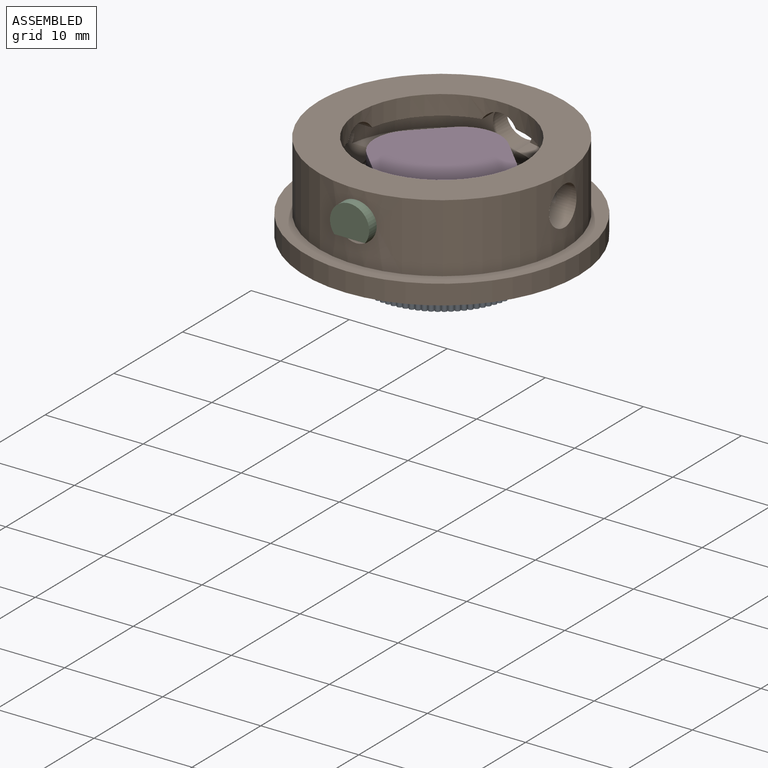
[diagram: assembled view]
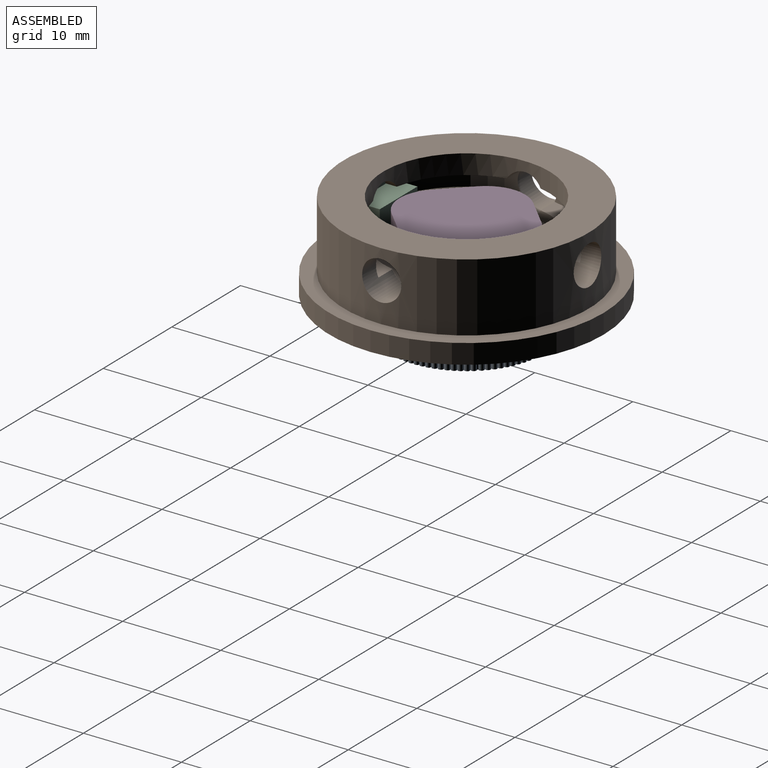
[diagram: assembled view, second angle]
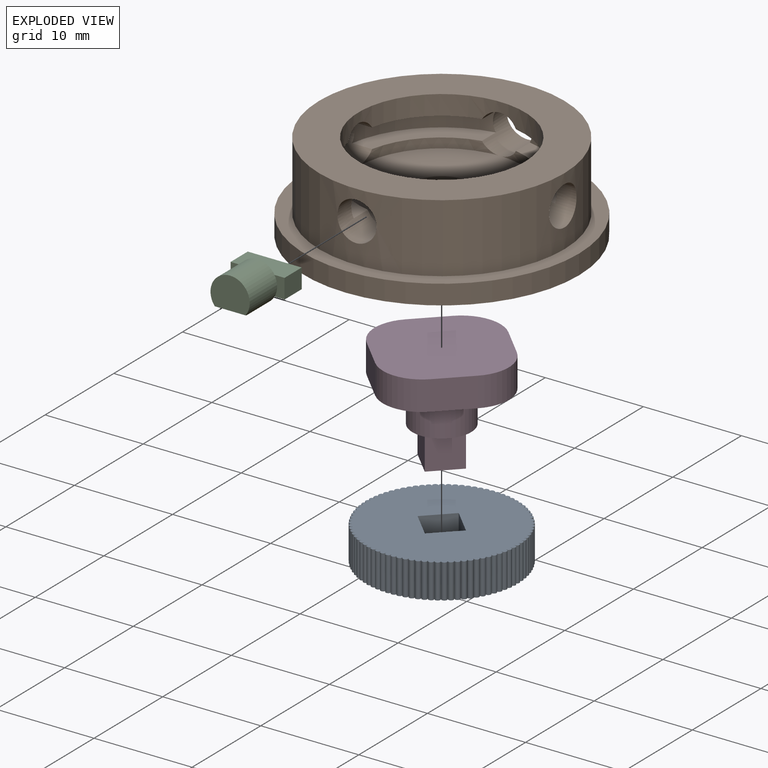
[diagram: exploded view]
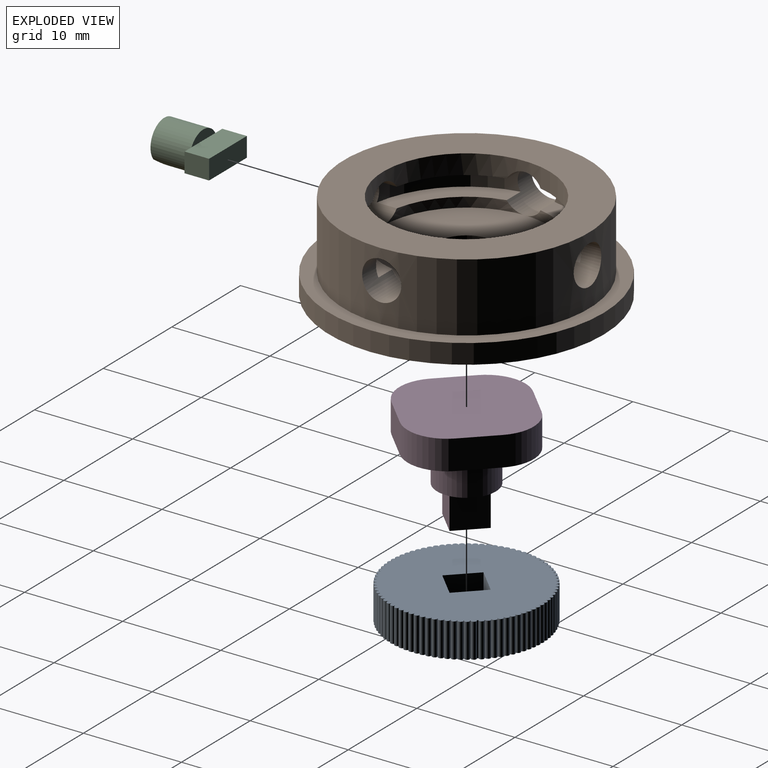
[diagram: exploded view, second angle]
ASSEMBLY  parts=4 mates=3
PART A: 176 faces, bbox 15.6x15.6x3.5 mm
  f0: cylinder r=0.27mm len=3.5mm, axis (0,0,1), area 3.1mm2, adj f1,f173,f174,f175
  f1: cylinder r=7.5mm len=3.5mm, axis (0,0,1), area 0.1mm2, adj f0,f2,f174,f175
  f2: cylinder r=0.27mm len=3.5mm, axis (0,0,1), area 3.1mm2, adj f1,f3,f174,f175
  f3: cylinder r=7.5mm len=3.5mm, axis (0,0,1), area 0.1mm2, adj f2,f4,f174,f175
  f4: cylinder r=0.27mm len=3.5mm, axis (0,0,1), area 3.1mm2, adj f3,f5,f174,f175
  f5: cylinder r=7.5mm len=3.5mm, axis (0,0,1), area 0.1mm2, adj f4,f6,f174,f175
  f6: cylinder r=0.27mm len=3.5mm, axis (0,0,1), area 3.1mm2, adj f5,f7,f174,f175
  f7: cylinder r=7.5mm len=3.5mm, axis (0,0,1), area 0.1mm2, adj f6,f8,f174,f175
  f8: cylinder r=0.27mm len=3.5mm, axis (0,0,1), area 3.1mm2, adj f7,f9,f174,f175
  f9: cylinder r=7.5mm len=3.5mm, axis (0,0,1), area 0.1mm2, adj f8,f10,f174,f175
  f10: cylinder r=0.27mm len=3.5mm, axis (0,0,1), area 3.1mm2, adj f9,f11,f174,f175
  f11: cylinder r=7.5mm len=3.5mm, axis (0,0,1), area 0.1mm2, adj f10,f12,f174,f175
  f12: cylinder r=0.27mm len=3.5mm, axis (0,0,1), area 3.1mm2, adj f11,f13,f174,f175
  f13: cylinder r=7.5mm len=3.5mm, axis (0,0,1), area 0.1mm2, adj f12,f14,f174,f175
  f14: cylinder r=0.27mm len=3.5mm, axis (0,0,1), area 3.1mm2, adj f13,f15,f174,f175
  f15: cylinder r=7.5mm len=3.5mm, axis (0,0,1), area 0.1mm2, adj f14,f16,f174,f175
  f16: cylinder r=0.27mm len=3.5mm, axis (0,0,1), area 3.1mm2, adj f15,f17,f174,f175
  f17: cylinder r=7.5mm len=3.5mm, axis (0,0,1), area 0.1mm2, adj f16,f18,f174,f175
  f18: cylinder r=0.27mm len=3.5mm, axis (0,0,1), area 3.1mm2, adj f17,f19,f174,f175
  f19: cylinder r=7.5mm len=3.5mm, axis (0,0,1), area 0.1mm2, adj f18,f20,f174,f175
  f20: cylinder r=0.27mm len=3.5mm, axis (0,0,1), area 3.1mm2, adj f19,f21,f174,f175
  f21: cylinder r=7.5mm len=3.5mm, axis (0,0,1), area 0.1mm2, adj f20,f22,f174,f175
  f22: cylinder r=0.27mm len=3.5mm, axis (0,0,1), area 3.1mm2, adj f21,f23,f174,f175
  f23: cylinder r=7.5mm len=3.5mm, axis (0,0,1), area 0.1mm2, adj f22,f24,f174,f175
  f24: cylinder r=0.27mm len=3.5mm, axis (0,0,1), area 3.1mm2, adj f23,f25,f174,f175
  f25: cylinder r=7.5mm len=3.5mm, axis (0,0,1), area 0.1mm2, adj f24,f26,f174,f175
  f26: cylinder r=0.27mm len=3.5mm, axis (0,0,1), area 3.1mm2, adj f25,f27,f174,f175
  f27: cylinder r=7.5mm len=3.5mm, axis (0,0,1), area 0.1mm2, adj f26,f28,f174,f175
  f28: cylinder r=0.27mm len=3.5mm, axis (0,0,1), area 3.1mm2, adj f27,f29,f174,f175
  f29: cylinder r=7.5mm len=3.5mm, axis (0,0,1), area 0.1mm2, adj f28,f30,f174,f175
  f30: cylinder r=0.27mm len=3.5mm, axis (0,0,1), area 3.1mm2, adj f29,f31,f174,f175
  f31: cylinder r=7.5mm len=3.5mm, axis (0,0,1), area 0.1mm2, adj f30,f32,f174,f175
  f32: cylinder r=0.27mm len=3.5mm, axis (0,0,1), area 3.1mm2, adj f31,f33,f174,f175
  f33: cylinder r=7.5mm len=3.5mm, axis (0,0,1), area 0.1mm2, adj f32,f34,f174,f175
  f34: cylinder r=0.27mm len=3.5mm, axis (0,0,1), area 3.1mm2, adj f33,f35,f174,f175
  f35: cylinder r=7.5mm len=3.5mm, axis (0,0,1), area 0.1mm2, adj f34,f36,f174,f175
  f36: cylinder r=0.27mm len=3.5mm, axis (0,0,1), area 3.1mm2, adj f35,f37,f174,f175
  f37: cylinder r=7.5mm len=3.5mm, axis (0,0,1), area 0.1mm2, adj f36,f38,f174,f175
  f38: cylinder r=0.27mm len=3.5mm, axis (0,0,1), area 3.1mm2, adj f37,f39,f174,f175
  f39: cylinder r=7.5mm len=3.5mm, axis (0,0,1), area 0.1mm2, adj f38,f40,f174,f175
  f40: cylinder r=0.27mm len=3.5mm, axis (0,0,1), area 3.1mm2, adj f39,f41,f174,f175
  f41: cylinder r=7.5mm len=3.5mm, axis (0,0,1), area 0.1mm2, adj f40,f42,f174,f175
  f42: cylinder r=0.27mm len=3.5mm, axis (0,0,1), area 3.1mm2, adj f41,f43,f174,f175
  f43: cylinder r=7.5mm len=3.5mm, axis (0,0,1), area 0.1mm2, adj f42,f44,f174,f175
  f44: cylinder r=0.27mm len=3.5mm, axis (0,0,1), area 3.1mm2, adj f43,f45,f174,f175
  f45: cylinder r=7.5mm len=3.5mm, axis (0,0,1), area 0.1mm2, adj f44,f46,f174,f175
  f46: cylinder r=0.27mm len=3.5mm, axis (0,0,1), area 3.1mm2, adj f45,f47,f174,f175
  f47: cylinder r=7.5mm len=3.5mm, axis (0,0,1), area 0.1mm2, adj f46,f48,f174,f175
  f48: cylinder r=0.27mm len=3.5mm, axis (0,0,1), area 3.1mm2, adj f47,f49,f174,f175
  f49: cylinder r=7.5mm len=3.5mm, axis (0,0,1), area 0.1mm2, adj f48,f50,f174,f175
  f50: cylinder r=0.27mm len=3.5mm, axis (0,0,1), area 3.1mm2, adj f49,f51,f174,f175
  f51: cylinder r=7.5mm len=3.5mm, axis (0,0,1), area 0.1mm2, adj f50,f52,f174,f175
  f52: cylinder r=0.27mm len=3.5mm, axis (0,0,1), area 3.1mm2, adj f51,f53,f174,f175
  f53: cylinder r=7.5mm len=3.5mm, axis (0,0,1), area 0.1mm2, adj f52,f54,f174,f175
  f54: cylinder r=0.27mm len=3.5mm, axis (0,0,1), area 3.1mm2, adj f53,f55,f174,f175
  f55: cylinder r=7.5mm len=3.5mm, axis (0,0,1), area 0.1mm2, adj f54,f56,f174,f175
  f56: cylinder r=0.27mm len=3.5mm, axis (0,0,1), area 3.1mm2, adj f55,f57,f174,f175
  f57: cylinder r=7.5mm len=3.5mm, axis (0,0,1), area 0.1mm2, adj f56,f58,f174,f175
  f58: cylinder r=0.27mm len=3.5mm, axis (0,0,1), area 3.1mm2, adj f57,f59,f174,f175
  f59: cylinder r=7.5mm len=3.5mm, axis (0,0,1), area 0.1mm2, adj f58,f60,f174,f175
  f60: cylinder r=0.27mm len=3.5mm, axis (0,0,1), area 3.1mm2, adj f59,f61,f174,f175
  f61: cylinder r=7.5mm len=3.5mm, axis (0,0,1), area 0.1mm2, adj f60,f62,f174,f175
  f62: cylinder r=0.27mm len=3.5mm, axis (0,0,1), area 3.1mm2, adj f61,f63,f174,f175
  f63: cylinder r=7.5mm len=3.5mm, axis (0,0,1), area 0.1mm2, adj f62,f64,f174,f175
  f64: cylinder r=0.27mm len=3.5mm, axis (0,0,1), area 3.1mm2, adj f63,f65,f174,f175
  f65: cylinder r=7.5mm len=3.5mm, axis (0,0,1), area 0.1mm2, adj f64,f66,f174,f175
  f66: cylinder r=0.27mm len=3.5mm, axis (0,0,1), area 3.1mm2, adj f65,f67,f174,f175
  f67: cylinder r=7.5mm len=3.5mm, axis (0,0,1), area 0.1mm2, adj f66,f68,f174,f175
  f68: cylinder r=0.27mm len=3.5mm, axis (0,0,1), area 3.1mm2, adj f67,f69,f174,f175
  f69: cylinder r=7.5mm len=3.5mm, axis (0,0,1), area 0.1mm2, adj f68,f70,f174,f175
  f70: cylinder r=0.27mm len=3.5mm, axis (0,0,1), area 3.1mm2, adj f69,f71,f174,f175
  f71: cylinder r=7.5mm len=3.5mm, axis (0,0,1), area 0.1mm2, adj f70,f72,f174,f175
  f72: cylinder r=0.27mm len=3.5mm, axis (0,0,1), area 3.1mm2, adj f71,f73,f174,f175
  f73: cylinder r=7.5mm len=3.5mm, axis (0,0,1), area 0.1mm2, adj f72,f74,f174,f175
  f74: cylinder r=0.27mm len=3.5mm, axis (0,0,1), area 3.1mm2, adj f73,f75,f174,f175
  f75: cylinder r=7.5mm len=3.5mm, axis (0,0,1), area 0.1mm2, adj f74,f76,f174,f175
  f76: cylinder r=0.27mm len=3.5mm, axis (0,0,1), area 3.1mm2, adj f75,f77,f174,f175
  f77: cylinder r=7.5mm len=3.5mm, axis (0,0,1), area 0.1mm2, adj f76,f78,f174,f175
  f78: cylinder r=0.27mm len=3.5mm, axis (0,0,1), area 3.1mm2, adj f77,f79,f174,f175
  f79: cylinder r=7.5mm len=3.5mm, axis (0,0,1), area 0.1mm2, adj f78,f80,f174,f175
  f80: cylinder r=0.27mm len=3.5mm, axis (0,0,1), area 3.1mm2, adj f79,f81,f174,f175
  f81: cylinder r=7.5mm len=3.5mm, axis (0,0,1), area 0.1mm2, adj f80,f82,f174,f175
  f82: cylinder r=0.27mm len=3.5mm, axis (0,0,1), area 3.1mm2, adj f81,f83,f174,f175
  f83: cylinder r=7.5mm len=3.5mm, axis (0,0,1), area 0.1mm2, adj f82,f84,f174,f175
  f84: cylinder r=0.27mm len=3.5mm, axis (0,0,1), area 3.1mm2, adj f83,f85,f174,f175
  f85: cylinder r=7.5mm len=3.5mm, axis (0,0,1), area 0.4mm2, adj f84,f86,f174,f175
  f86: cylinder r=0.27mm len=3.5mm, axis (0,0,1), area 3.1mm2, adj f85,f87,f174,f175
  f87: cylinder r=7.5mm len=3.5mm, axis (0,0,1), area 0.1mm2, adj f86,f88,f174,f175
  f88: cylinder r=0.27mm len=3.5mm, axis (0,0,1), area 3.1mm2, adj f87,f89,f174,f175
  f89: cylinder r=7.5mm len=3.5mm, axis (0,0,1), area 0.1mm2, adj f88,f90,f174,f175
  f90: cylinder r=0.27mm len=3.5mm, axis (0,0,1), area 3.1mm2, adj f89,f91,f174,f175
  f91: cylinder r=7.5mm len=3.5mm, axis (0,0,1), area 0.1mm2, adj f90,f92,f174,f175
  f92: cylinder r=0.27mm len=3.5mm, axis (0,0,1), area 3.1mm2, adj f91,f93,f174,f175
  f93: cylinder r=7.5mm len=3.5mm, axis (0,0,1), area 0.1mm2, adj f92,f94,f174,f175
  f94: cylinder r=0.27mm len=3.5mm, axis (0,0,1), area 3.1mm2, adj f93,f95,f174,f175
  f95: cylinder r=7.5mm len=3.5mm, axis (0,0,1), area 0.1mm2, adj f94,f96,f174,f175
  f96: cylinder r=0.27mm len=3.5mm, axis (0,0,1), area 3.1mm2, adj f95,f97,f174,f175
  f97: cylinder r=7.5mm len=3.5mm, axis (0,0,1), area 0.1mm2, adj f96,f98,f174,f175
  f98: cylinder r=0.27mm len=3.5mm, axis (0,0,1), area 3.1mm2, adj f97,f99,f174,f175
  f99: cylinder r=7.5mm len=3.5mm, axis (0,0,1), area 0.1mm2, adj f98,f100,f174,f175
  f100: cylinder r=0.27mm len=3.5mm, axis (0,0,1), area 3.1mm2, adj f99,f101,f174,f175
  f101: cylinder r=7.5mm len=3.5mm, axis (0,0,1), area 0.1mm2, adj f100,f102,f174,f175
  f102: cylinder r=0.27mm len=3.5mm, axis (0,0,1), area 3.1mm2, adj f101,f103,f174,f175
  f103: cylinder r=7.5mm len=3.5mm, axis (0,0,1), area 0.1mm2, adj f102,f104,f174,f175
  f104: cylinder r=0.27mm len=3.5mm, axis (0,0,1), area 3.1mm2, adj f103,f105,f174,f175
  f105: cylinder r=7.5mm len=3.5mm, axis (0,0,1), area 0.1mm2, adj f104,f106,f174,f175
  f106: cylinder r=0.27mm len=3.5mm, axis (0,0,1), area 3.1mm2, adj f105,f107,f174,f175
  f107: cylinder r=7.5mm len=3.5mm, axis (0,0,1), area 0.1mm2, adj f106,f108,f174,f175
  f108: cylinder r=0.27mm len=3.5mm, axis (0,0,1), area 3.1mm2, adj f107,f109,f174,f175
  f109: cylinder r=7.5mm len=3.5mm, axis (0,0,1), area 0.1mm2, adj f108,f110,f174,f175
  f110: cylinder r=0.27mm len=3.5mm, axis (0,0,1), area 3.1mm2, adj f109,f111,f174,f175
  f111: cylinder r=7.5mm len=3.5mm, axis (0,0,1), area 0.1mm2, adj f110,f112,f174,f175
  f112: cylinder r=0.27mm len=3.5mm, axis (0,0,1), area 3.1mm2, adj f111,f113,f174,f175
  f113: cylinder r=7.5mm len=3.5mm, axis (0,0,1), area 0.1mm2, adj f112,f114,f174,f175
  f114: cylinder r=0.27mm len=3.5mm, axis (0,0,1), area 3.1mm2, adj f113,f115,f174,f175
  f115: cylinder r=7.5mm len=3.5mm, axis (0,0,1), area 0.1mm2, adj f114,f116,f174,f175
  f116: cylinder r=0.27mm len=3.5mm, axis (0,0,1), area 3.1mm2, adj f115,f117,f174,f175
  f117: cylinder r=7.5mm len=3.5mm, axis (0,0,1), area 0.1mm2, adj f116,f118,f174,f175
  f118: cylinder r=0.27mm len=3.5mm, axis (0,0,1), area 3.1mm2, adj f117,f119,f174,f175
  f119: cylinder r=7.5mm len=3.5mm, axis (0,0,1), area 0.1mm2, adj f118,f120,f174,f175
  f120: cylinder r=0.27mm len=3.5mm, axis (0,0,1), area 3.1mm2, adj f119,f121,f174,f175
  f121: cylinder r=7.5mm len=3.5mm, axis (0,0,1), area 0.1mm2, adj f120,f122,f174,f175
  f122: cylinder r=0.27mm len=3.5mm, axis (0,0,1), area 3.1mm2, adj f121,f123,f174,f175
  f123: cylinder r=7.5mm len=3.5mm, axis (0,0,1), area 0.1mm2, adj f122,f124,f174,f175
  f124: cylinder r=0.27mm len=3.5mm, axis (0,0,1), area 3.1mm2, adj f123,f125,f174,f175
  f125: cylinder r=7.5mm len=3.5mm, axis (0,0,1), area 0.1mm2, adj f124,f126,f174,f175
  f126: cylinder r=0.27mm len=3.5mm, axis (0,0,1), area 3.1mm2, adj f125,f127,f174,f175
  f127: cylinder r=7.5mm len=3.5mm, axis (0,0,1), area 0.1mm2, adj f126,f128,f174,f175
  f128: cylinder r=0.27mm len=3.5mm, axis (0,0,1), area 3.1mm2, adj f127,f129,f174,f175
  f129: cylinder r=7.5mm len=3.5mm, axis (0,0,1), area 0.1mm2, adj f128,f130,f174,f175
  f130: cylinder r=0.27mm len=3.5mm, axis (0,0,1), area 3.1mm2, adj f129,f131,f174,f175
  f131: cylinder r=7.5mm len=3.5mm, axis (0,0,1), area 0.1mm2, adj f130,f132,f174,f175
  f132: cylinder r=0.27mm len=3.5mm, axis (0,0,1), area 3.1mm2, adj f131,f133,f174,f175
  f133: cylinder r=7.5mm len=3.5mm, axis (0,0,1), area 0.1mm2, adj f132,f134,f174,f175
  f134: cylinder r=0.27mm len=3.5mm, axis (0,0,1), area 3.1mm2, adj f133,f135,f174,f175
  f135: cylinder r=7.5mm len=3.5mm, axis (0,0,1), area 0.1mm2, adj f134,f136,f174,f175
  f136: cylinder r=0.27mm len=3.5mm, axis (0,0,1), area 3.1mm2, adj f135,f137,f174,f175
  f137: cylinder r=7.5mm len=3.5mm, axis (0,0,1), area 0.1mm2, adj f136,f138,f174,f175
  f138: cylinder r=0.27mm len=3.5mm, axis (0,0,1), area 3.1mm2, adj f137,f139,f174,f175
  f139: cylinder r=7.5mm len=3.5mm, axis (0,0,1), area 0.1mm2, adj f138,f140,f174,f175
  f140: cylinder r=0.27mm len=3.5mm, axis (0,0,1), area 3.1mm2, adj f139,f141,f174,f175
  f141: cylinder r=7.5mm len=3.5mm, axis (0,0,1), area 0.1mm2, adj f140,f142,f174,f175
  f142: cylinder r=0.27mm len=3.5mm, axis (0,0,1), area 3.1mm2, adj f141,f143,f174,f175
  f143: cylinder r=7.5mm len=3.5mm, axis (0,0,1), area 0.1mm2, adj f142,f144,f174,f175
  f144: cylinder r=0.27mm len=3.5mm, axis (0,0,1), area 3.1mm2, adj f143,f145,f174,f175
  f145: cylinder r=7.5mm len=3.5mm, axis (0,0,1), area 0.1mm2, adj f144,f146,f174,f175
  f146: cylinder r=0.27mm len=3.5mm, axis (0,0,1), area 3.1mm2, adj f145,f147,f174,f175
  f147: cylinder r=7.5mm len=3.5mm, axis (0,0,1), area 0.1mm2, adj f146,f148,f174,f175
  f148: cylinder r=0.27mm len=3.5mm, axis (0,0,1), area 3.1mm2, adj f147,f149,f174,f175
  f149: cylinder r=7.5mm len=3.5mm, axis (0,0,1), area 0.1mm2, adj f148,f150,f174,f175
  f150: cylinder r=0.27mm len=3.5mm, axis (0,0,1), area 3.1mm2, adj f149,f151,f174,f175
  f151: cylinder r=7.5mm len=3.5mm, axis (0,0,1), area 0.1mm2, adj f150,f152,f174,f175
  f152: cylinder r=0.27mm len=3.5mm, axis (0,0,1), area 3.1mm2, adj f151,f153,f174,f175
  f153: cylinder r=7.5mm len=3.5mm, axis (0,0,1), area 0.1mm2, adj f152,f154,f174,f175
  f154: cylinder r=0.27mm len=3.5mm, axis (0,0,1), area 3.1mm2, adj f153,f155,f174,f175
  f155: cylinder r=7.5mm len=3.5mm, axis (0,0,1), area 0.1mm2, adj f154,f156,f174,f175
  f156: cylinder r=0.27mm len=3.5mm, axis (0,0,1), area 3.1mm2, adj f155,f157,f174,f175
  f157: cylinder r=7.5mm len=3.5mm, axis (0,0,1), area 0.1mm2, adj f156,f158,f174,f175
  f158: cylinder r=0.27mm len=3.5mm, axis (0,0,1), area 3.1mm2, adj f157,f159,f174,f175
  f159: cylinder r=7.5mm len=3.5mm, axis (0,0,1), area 0.1mm2, adj f158,f160,f174,f175
  f160: cylinder r=0.27mm len=3.5mm, axis (0,0,1), area 3.1mm2, adj f159,f161,f174,f175
  f161: cylinder r=7.5mm len=3.5mm, axis (0,0,1), area 0.1mm2, adj f160,f162,f174,f175
  f162: cylinder r=0.27mm len=3.5mm, axis (0,0,1), area 3.1mm2, adj f161,f163,f174,f175
  f163: cylinder r=7.5mm len=3.5mm, axis (0,0,1), area 0.1mm2, adj f162,f164,f174,f175
  f164: cylinder r=0.27mm len=3.5mm, axis (0,0,1), area 3.1mm2, adj f163,f165,f174,f175
  f165: cylinder r=7.5mm len=3.5mm, axis (0,0,1), area 0.1mm2, adj f164,f166,f174,f175
  f166: cylinder r=0.27mm len=3.5mm, axis (0,0,1), area 3.1mm2, adj f165,f167,f174,f175
  f167: cylinder r=7.5mm len=3.5mm, axis (0,0,1), area 0.1mm2, adj f166,f168,f174,f175
  f168: cylinder r=0.27mm len=3.5mm, axis (0,0,1), area 3.1mm2, adj f167,f173,f174,f175
  f169: plane 3.5x3.49mm, normal (1,0,0), area 12.2mm2, adj f170,f172,f174,f175
  f170: plane 3.5x3.49mm, normal (0,1,0), area 12.2mm2, adj f169,f171,f174,f175
  f171: plane 3.5x3.49mm, normal (-1,0,0), area 12.2mm2, adj f170,f172,f174,f175
  f172: plane 3.5x3.49mm, normal (0,-1,0), area 12.2mm2, adj f169,f171,f174,f175
  f173: cylinder r=7.5mm len=3.5mm, axis (0,0,1), area 0.1mm2, adj f0,f168,f174,f175
  f174: plane 15.56x15.56mm, normal (0,0,-1), area 174.7mm2, adj f0,f1,f2,f3,f4,f5,f6,f7
  f175: plane 15.56x15.56mm, normal (0,0,1), area 174.7mm2, adj f0,f1,f2,f3,f4,f5,f6,f7
PART B: 28 faces, bbox 28x28x9 mm
  f0: plane 8.62x8.62mm, normal (0,0,-1), area 22.9mm2, adj f3,f17,f23,f26
  f1: cylinder r=8.5mm len=8.5mm, axis (0,0,-1), area 10.9mm2, adj f19,f21,f24,f25
  f2: plane 8.62x8.62mm, normal (0,0,1), area 22.9mm2, adj f3,f5,f23,f26
  f3: cylinder r=10.5mm len=8.62mm, axis (0,0,-1), area 25.3mm2, adj f0,f2,f23,f26
  f4: plane 8.62x8.62mm, normal (0,0,-1), area 22.9mm2, adj f17,f22,f23,f25
  f5: cylinder r=8.5mm len=8.5mm, axis (0,0,-1), area 10.9mm2, adj f2,f19,f23,f26
  f6: plane 8.62x8.62mm, normal (0,0,1), area 22.9mm2, adj f9,f22,f23,f25
  f7: cylinder r=10.5mm len=8.62mm, axis (0,0,-1), area 25.3mm2, adj f16,f21,f24,f25
  f8: plane 8.62x8.62mm, normal (0,0,-1), area 22.9mm2, adj f11,f17,f24,f26
  f9: cylinder r=8.5mm len=8.5mm, axis (0,0,-1), area 10.9mm2, adj f6,f19,f23,f25
  f10: plane 8.62x8.62mm, normal (0,0,1), area 22.9mm2, adj f11,f20,f24,f26
  f11: cylinder r=10.5mm len=8.62mm, axis (0,0,-1), area 25.3mm2, adj f8,f10,f24,f26
  f12: cylinder r=12.5mm len=25mm, axis (0,0,-1), area 499.2mm2, adj f15,f18,f23,f24,f25,f26
  f13: cylinder r=14mm len=28mm, axis (0,0,1), area 175.9mm2, adj f14,f15
  f14: plane 28x28mm, normal (0,0,-1), area 587.5mm2, adj f13,f27
  f15: plane 28x28mm, normal (0,0,1), area 124.9mm2, adj f12,f13
  f16: plane 8.62x8.62mm, normal (0,0,-1), area 22.9mm2, adj f7,f17,f24,f25
  f17: cylinder r=8.5mm len=17mm, axis (0,0,-1), area 96.9mm2, adj f0,f4,f8,f16,f18,f23,f24,f25
  f18: plane 25x25mm, normal (0,0,1), area 263.9mm2, adj f12,f17
  f19: plane 17x17mm, normal (0,0,1), area 198.7mm2, adj f1,f5,f9,f20,f27
  f20: cylinder r=8.5mm len=8.5mm, axis (0,0,-1), area 10.9mm2, adj f10,f19,f24,f26
  f21: plane 8.62x8.62mm, normal (0,0,1), area 22.9mm2, adj f1,f7,f24,f25
  f22: cylinder r=10.5mm len=8.62mm, axis (0,0,-1), area 25.3mm2, adj f4,f6,f23,f25
  f23: cylinder r=2mm len=4.18mm, axis (0,-1,0), area 42.2mm2, adj f0,f2,f3,f4,f5,f6,f9,f12
  f24: cylinder r=2mm len=4.18mm, axis (0,-1,0), area 42.2mm2, adj f1,f7,f8,f10,f11,f12,f16,f17
  f25: cylinder r=2mm len=4.18mm, axis (1,0,0), area 42.2mm2, adj f1,f4,f6,f7,f9,f12,f16,f17
  f26: cylinder r=2mm len=4.18mm, axis (1,0,0), area 42.2mm2, adj f0,f2,f3,f5,f8,f10,f11,f12
  f27: cylinder r=3mm len=6mm, axis (0,0,1), area 75.4mm2, adj f14,f19
PART C: 12 faces, bbox 5.5x6.5x4 mm
  f0: plane 2x1.02mm, normal (0,-1,0), area 1.7mm2, adj f2,f3,f4,f8
  f1: plane 2.5x2mm, normal (-1,0,0), area 5mm2, adj f2,f4,f5,f6
  f2: plane 5.5x2.5mm, normal (0,0,-1), area 13.8mm2, adj f0,f1,f3,f5,f6,f7
  f3: plane 2.5x2mm, normal (1,0,0), area 5mm2, adj f0,f2,f4,f6
  f4: plane 5.5x2.5mm, normal (0,0,1), area 13.8mm2, adj f0,f1,f3,f5,f6,f10
  f5: plane 2x1.02mm, normal (0,-1,0), area 1.7mm2, adj f1,f2,f4,f8
  f6: plane 5.5x2mm, normal (0,1,0), area 11mm2, adj f1,f2,f3,f4
  f7: plane 3.46x1mm, normal (0,1,0), area 2.5mm2, adj f2,f8
  f8: cylinder r=2mm len=4mm, axis (0,1,0), area 46.5mm2, adj f0,f5,f7,f9,f10,f11
  f9: plane 4x3.24mm, normal (0,-1,0), area 10.9mm2, adj f8,f11
  f10: plane 3.46x1mm, normal (0,1,0), area 2.5mm2, adj f4,f8
  f11: plane 3.13x1.61mm, normal (0,-0.42,-0.91), area 3.9mm2, adj f8,f9
PART D: 17 faces, bbox 12x12x10.5 mm
  f0: plane 6x6mm, normal (0,0,-1), area 16mm2, adj f11,f12,f13,f14,f15
  f1: plane 4.02x3mm, normal (-1,0,0), area 12.1mm2, adj f2,f8,f9,f10
  f2: cylinder r=4mm len=4mm, axis (0,0,-1), area 18.8mm2, adj f1,f3,f9,f10
  f3: plane 4.02x3mm, normal (0,-1,0), area 12.1mm2, adj f2,f4,f9,f10
  f4: cylinder r=4mm len=4mm, axis (0,0,-1), area 18.8mm2, adj f3,f5,f9,f10
  f5: plane 4.02x3mm, normal (1,0,0), area 12.1mm2, adj f4,f6,f9,f10
  f6: cylinder r=4mm len=4mm, axis (0,0,-1), area 18.8mm2, adj f5,f7,f9,f10
  f7: plane 4.02x3mm, normal (0,1,0), area 12.1mm2, adj f6,f8,f9,f10
  f8: cylinder r=4mm len=4mm, axis (0,0,-1), area 18.8mm2, adj f1,f7,f9,f10
  f9: plane 12.02x12.02mm, normal (0,0,1), area 130.8mm2, adj f1,f2,f3,f4,f5,f6,f7,f8
  f10: plane 12.02x12.02mm, normal (0,0,-1), area 102.5mm2, adj f1,f2,f3,f4,f5,f6,f7,f8
  f11: cylinder r=3mm len=6mm, axis (0,0,1), area 75.4mm2, adj f0,f10
  f12: plane 3.5x3.5mm, normal (1,0,0), area 12.2mm2, adj f0,f13,f15,f16
  f13: plane 3.5x3.5mm, normal (0,-1,0), area 12.2mm2, adj f0,f12,f14,f16
  f14: plane 3.5x3.5mm, normal (-1,0,0), area 12.2mm2, adj f0,f13,f15,f16
  f15: plane 3.5x3.5mm, normal (0,1,0), area 12.2mm2, adj f0,f12,f14,f16
  f16: plane 3.5x3.5mm, normal (0,0,-1), area 12.2mm2, adj f12,f13,f14,f15
PLACE A rot(axis=(0,0,1),45deg) t=(-15.5,24.21,20)mm
PLACE B t=(-15.5,24.21,20)mm fixed
PLACE C t=(-15.5,23.3,20)mm
PLACE D rot(axis=(0,0,1),45deg) t=(-15.5,24.21,20)mm
MATE fastened A.f173 <-> D.f11  axis (0,0,-1) through (-15.5,24.21,14.5)mm
MATE slider C.f8 <-> B.f23  axis (0,-1,0) through (-15.5,10.79,24)mm
MATE revolute B.f27 <-> D.f11  axis (0,0,-1) through (-15.5,24.21,18)mm
